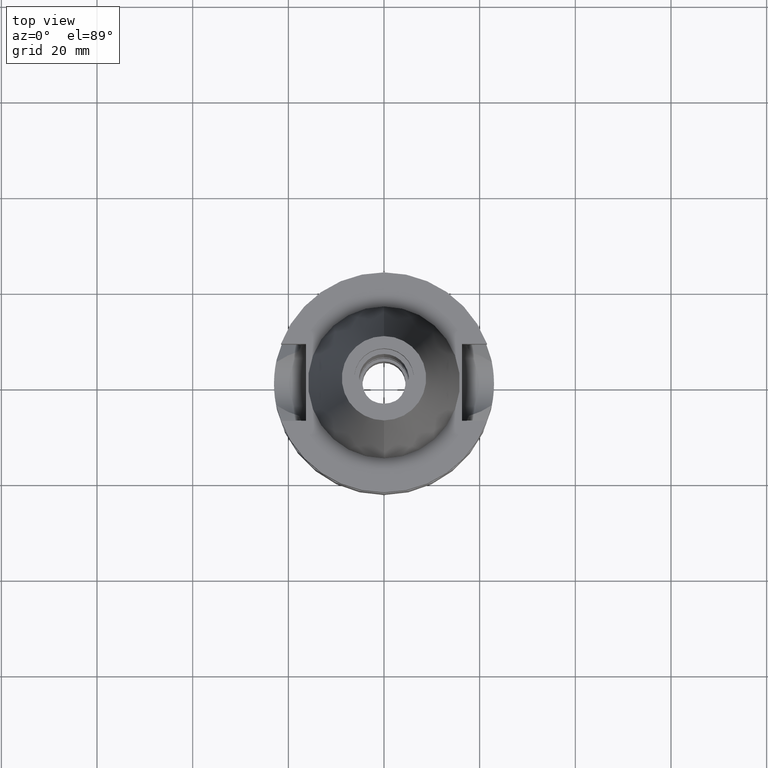
[diagram: clean part render]
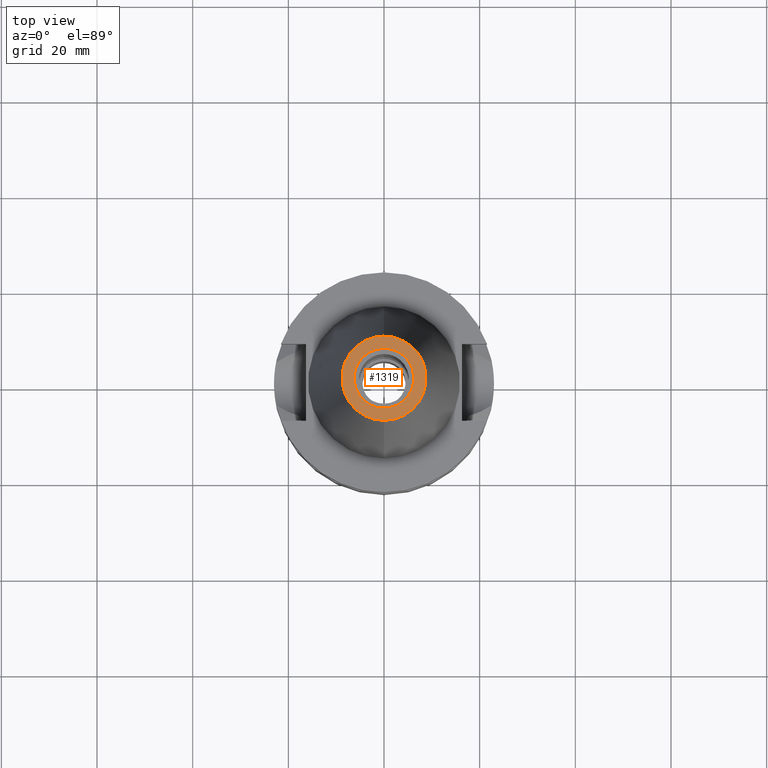
[diagram: same view with one face highlighted and labeled with its STEP entity id]
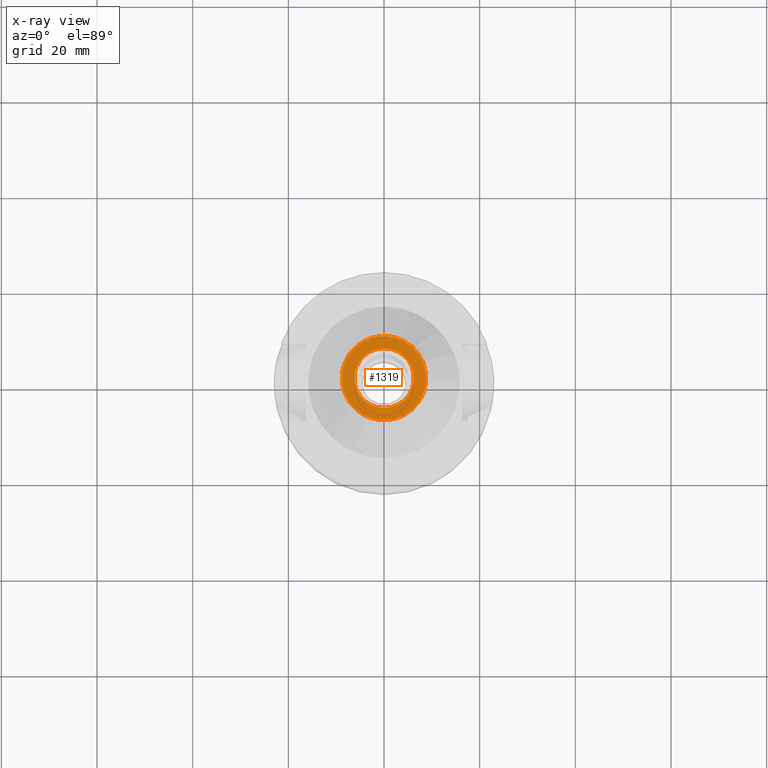
[diagram: x-ray of the same camera — body ghosted, the highlighted face saturated]
A machine part, top view. The second image highlights one B-rep face of the part: STEP entity #1319.
The next image is the same camera in x-ray: the body ghosted, the highlighted face saturated — about 0% of this face is hidden behind the body in this view.
In plain terms, the highlighted planar face has unit normal (0, 0, -1).
Its self-contained STEP definition (entity closure, byte-faithful):
#48=CARTESIAN_POINT('',(0.E0,1.521011324541E-14,4.84E1));
#49=DIRECTION('',(0.E0,0.E0,-1.E0));
#50=DIRECTION('',(0.E0,-1.E0,0.E0));
#51=AXIS2_PLACEMENT_3D('',#48,#49,#50);
#56=CARTESIAN_POINT('',(0.E0,1.521011324541E-14,4.84E1));
#57=DIRECTION('',(0.E0,0.E0,-1.E0));
#58=DIRECTION('',(0.E0,1.E0,0.E0));
#59=AXIS2_PLACEMENT_3D('',#56,#57,#58);
#64=CARTESIAN_POINT('',(0.E0,1.902121408436E-14,4.84E1));
#65=DIRECTION('',(0.E0,0.E0,1.E0));
#66=DIRECTION('',(0.E0,-1.E0,0.E0));
#67=AXIS2_PLACEMENT_3D('',#64,#65,#66);
#72=CARTESIAN_POINT('',(0.E0,1.902121408436E-14,4.84E1));
#73=DIRECTION('',(0.E0,0.E0,1.E0));
#74=DIRECTION('',(0.E0,1.E0,0.E0));
#75=AXIS2_PLACEMENT_3D('',#72,#73,#74);
#1110=CARTESIAN_POINT('',(0.E0,8.816791732783E0,4.84E1));
#1112=VERTEX_POINT('',#1110);
#1116=CARTESIAN_POINT('',(0.E0,-8.816791732783E0,4.84E1));
#1117=VERTEX_POINT('',#1116);
#1118=CARTESIAN_POINT('',(0.E0,-6.25E0,4.84E1));
#1119=CARTESIAN_POINT('',(0.E0,6.25E0,4.84E1));
#1120=VERTEX_POINT('',#1118);
#1121=VERTEX_POINT('',#1119);
#1304=CARTESIAN_POINT('',(0.E0,1.817375849935E-14,4.84E1));
#1305=DIRECTION('',(0.E0,0.E0,-1.E0));
#1306=DIRECTION('',(0.E0,-1.E0,0.E0));
#1307=AXIS2_PLACEMENT_3D('',#1304,#1305,#1306);
#1308=PLANE('',#1307);
#1309=ORIENTED_EDGE('',*,*,#1296,.T.);
#1310=ORIENTED_EDGE('',*,*,#1285,.T.);
#1311=EDGE_LOOP('',(#1309,#1310));
#1312=FACE_OUTER_BOUND('',#1311,.F.);
#1314=ORIENTED_EDGE('',*,*,#1313,.T.);
#1316=ORIENTED_EDGE('',*,*,#1315,.T.);
#1317=EDGE_LOOP('',(#1314,#1316));
#1318=FACE_BOUND('',#1317,.F.);
#52=CIRCLE('',#51,8.816791732783E0);
#60=CIRCLE('',#59,8.816791732783E0);
#68=CIRCLE('',#67,6.25E0);
#76=CIRCLE('',#75,6.25E0);
#1285=EDGE_CURVE('',#1112,#1117,#60,.T.);
#1296=EDGE_CURVE('',#1117,#1112,#52,.T.);
#1313=EDGE_CURVE('',#1120,#1121,#68,.T.);
#1315=EDGE_CURVE('',#1121,#1120,#76,.T.);
#1319=ADVANCED_FACE('',(#1312,#1318),#1308,.F.);